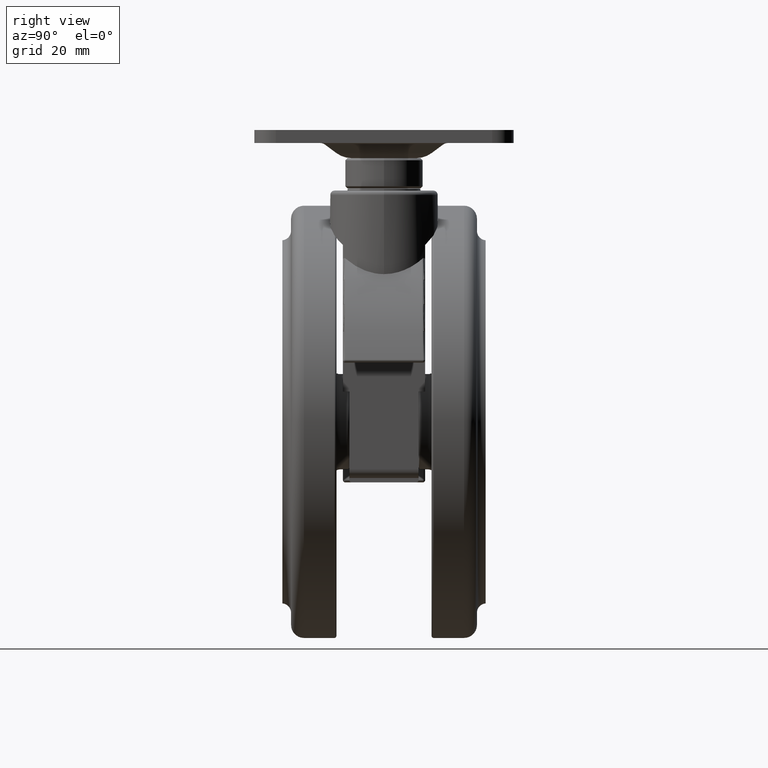
[diagram: clean part render]
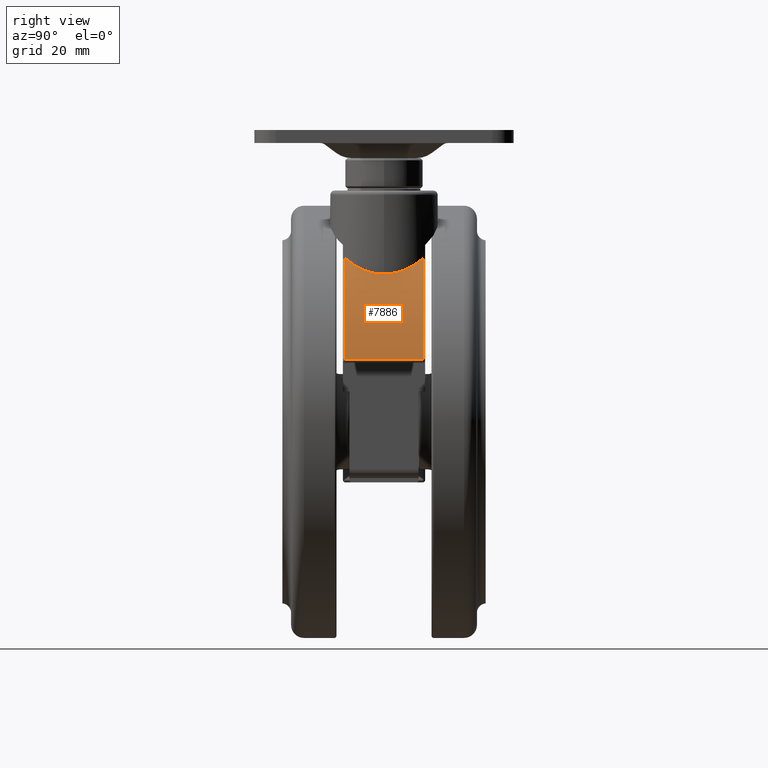
[diagram: same view with one face highlighted and labeled with its STEP entity id]
A machine part, right view. The second image highlights one B-rep face of the part: STEP entity #7886.
In plain terms, the highlighted cylindrical surface (partial cylindrical patch) has radius 50 mm, axis along (0, -1, 0).
Its self-contained STEP definition (entity closure, byte-faithful):
#32 = CARTESIAN_POINT ( 'NONE',  ( -24.00000000000000000, 990.5000000000000000, -53.50000000000000000 ) ) ;
#109 = ORIENTED_EDGE ( 'NONE', *, *, #4098, .F. ) ;
#154 = CARTESIAN_POINT ( 'NONE',  ( 12.37764164409242300, -1.801385357013293400, -19.19734373394497200 ) ) ;
#243 = CARTESIAN_POINT ( 'NONE',  ( 12.11877000567150600, 3.095162068476703600, -18.92467575144749100 ) ) ;
#283 = CARTESIAN_POINT ( 'NONE',  ( -24.00000000000000000, 9.000000000000000000, -53.50000000000000000 ) ) ;
#549 = LINE ( 'NONE', #6242, #7424 ) ;
#618 = CARTESIAN_POINT ( 'NONE',  ( 8.674675786448640100, 9.000000000000000000, -15.65339431005135000 ) ) ;
#662 = CARTESIAN_POINT ( 'NONE',  ( 8.674675786448640100, -9.000000000000000000, -15.65339431005135000 ) ) ;
#703 = DIRECTION ( 'NONE',  ( 0.0000000000000000000, 0.0000000000000000000, -1.000000000000000000 ) ) ;
#804 = CARTESIAN_POINT ( 'NONE',  ( 10.41356608720767900, -6.925548331915378800, -17.22597816632628600 ) ) ;
#839 = CARTESIAN_POINT ( 'NONE',  ( 12.50000000000000200, -0.4570195409798453200, -19.32764275031654600 ) ) ;
#913 = CIRCLE ( 'NONE', #1003, 50.00000000000000000 ) ;
#926 = CARTESIAN_POINT ( 'NONE',  ( 11.73015233206106700, 4.340429558232132800, -18.52294936965489200 ) ) ;
#972 = DIRECTION ( 'NONE',  ( 1.804112415015879400E-015, 0.0000000000000000000, 1.000000000000000000 ) ) ;
#982 = CIRCLE ( 'NONE', #2866, 50.00000000000000000 ) ;
#1003 = AXIS2_PLACEMENT_3D ( 'NONE', #6701, #6869, #6633 ) ;
#1084 = EDGE_CURVE ( 'NONE', #5420, #2726, #913, .T. ) ;
#1491 = CARTESIAN_POINT ( 'NONE',  ( 11.03877907241482200, -5.879024560946014300, -17.82977506181467900 ) ) ;
#1573 = ORIENTED_EDGE ( 'NONE', *, *, #5675, .F. ) ;
#1609 = CARTESIAN_POINT ( 'NONE',  ( 11.23411156296764400, 5.497210306263435900, -18.02302103889086000 ) ) ;
#1790 = CYLINDRICAL_SURFACE ( 'NONE', #4773, 50.00000000000000700 ) ;
#2159 = CARTESIAN_POINT ( 'NONE',  ( 11.57181168495634800, -4.745331184770802400, -18.36162725998665800 ) ) ;
#2235 = CARTESIAN_POINT ( 'NONE',  ( 12.49999999999991700, 3.393769718286666300E-042, -19.32764275031635700 ) ) ;
#2261 = DIRECTION ( 'NONE',  ( -0.0000000000000000000, 1.000000000000000000, -0.0000000000000000000 ) ) ;
#2263 = CARTESIAN_POINT ( 'NONE',  ( 10.63760660978023000, 6.577196889096090800, -17.44008869464494200 ) ) ;
#2726 = VERTEX_POINT ( 'NONE', #8518 ) ;
#2819 = CARTESIAN_POINT ( 'NONE',  ( 11.92972378157572200, -3.738713559440001600, -18.72839615757576200 ) ) ;
#2866 = AXIS2_PLACEMENT_3D ( 'NONE', #283, #4960, #972 ) ;
#2942 = CARTESIAN_POINT ( 'NONE',  ( 9.732990473647905800, 7.883236944809032900, -16.58821432272462500 ) ) ;
#2962 = CARTESIAN_POINT ( 'NONE',  ( 23.89849570952705100, 9.000000000000000000, -39.15656565656575300 ) ) ;
#3438 = VERTEX_POINT ( 'NONE', #618 ) ;
#3500 = CARTESIAN_POINT ( 'NONE',  ( 12.10947342914417600, -3.107862272914747600, -18.91513334638029100 ) ) ;
#3615 = CARTESIAN_POINT ( 'NONE',  ( 8.674675786448640100, 9.000000000000000000, -15.65339431005135000 ) ) ;
#3639 = ORIENTED_EDGE ( 'NONE', *, *, #1084, .T. ) ;
#3669 = B_SPLINE_CURVE_WITH_KNOTS ( 'NONE', 3,
 ( #2235, #6206, #4247, #243, #4923, #926, #5581, #1609, #6243, #2263, #6920, #2942, #7587, #3615 ),
 .UNSPECIFIED., .F., .F.,
 ( 4, 2, 2, 2, 2, 2, 4 ),
 ( 3.804236636272513900E-017, 0.002694944737254267500, 0.004042417105881382200, 0.005389889474508496900, 0.006737361843135610700, 0.008084834211762726200, 0.01077977894901695000 ),
 .UNSPECIFIED. ) ;
#3670 = EDGE_CURVE ( 'NONE', #5001, #3438, #982, .T. ) ;
#3963 = VERTEX_POINT ( 'NONE', #5335 ) ;
#4027 = DIRECTION ( 'NONE',  ( 0.0000000000000000000, -1.000000000000000000, 0.0000000000000000000 ) ) ;
#4098 = EDGE_CURVE ( 'NONE', #5420, #3963, #4832, .T. ) ;
#4157 = CARTESIAN_POINT ( 'NONE',  ( 12.30549156215436200, -2.241011549354734000, -19.12078713125714200 ) ) ;
#4179 = EDGE_CURVE ( 'NONE', #2726, #5001, #549, .T. ) ;
#4237 = ORIENTED_EDGE ( 'NONE', *, *, #3670, .T. ) ;
#4247 = CARTESIAN_POINT ( 'NONE',  ( 12.40084018158641400, 1.802115843324062900, -19.22095088052819600 ) ) ;
#4773 = AXIS2_PLACEMENT_3D ( 'NONE', #32, #4027, #703 ) ;
#4803 = CARTESIAN_POINT ( 'NONE',  ( 9.727541181349737400, -7.889693021056102900, -16.58325949959632300 ) ) ;
#4832 = B_SPLINE_CURVE_WITH_KNOTS ( 'NONE', 3,
 ( #6093, #6781, #4803, #804, #5468, #1491, #6122, #2159, #6808, #2819, #7464, #3500, #8137, #4157, #154, #4833, #839, #5489 ),
 .UNSPECIFIED., .F., .F.,
 ( 4, 2, 2, 2, 2, 2, 2, 2, 4 ),
 ( 0.07395446126120951100, 0.07664576319914051500, 0.07799141416810601000, 0.07933706513707151900, 0.08068271610603701400, 0.08135554159051977500, 0.08202836707500252300, 0.08337401804396801800, 0.08471966901293352700 ),
 .UNSPECIFIED. ) ;
#4833 = CARTESIAN_POINT ( 'NONE',  ( 12.47489013491492200, -0.9100098877678261000, -19.30076860309551300 ) ) ;
#4923 = CARTESIAN_POINT ( 'NONE',  ( 12.00128187329013900, 3.522078346824553100, -18.80208133115295200 ) ) ;
#4960 = DIRECTION ( 'NONE',  ( -0.0000000000000000000, -1.000000000000000000, -0.0000000000000000000 ) ) ;
#5001 = VERTEX_POINT ( 'NONE', #2962 ) ;
#5335 = CARTESIAN_POINT ( 'NONE',  ( 12.49999999999991700, 3.393769718286666300E-042, -19.32764275031635700 ) ) ;
#5410 = EDGE_LOOP ( 'NONE', ( #5615, #4237, #1573, #109, #3639 ) ) ;
#5420 = VERTEX_POINT ( 'NONE', #662 ) ;
#5468 = CARTESIAN_POINT ( 'NONE',  ( 10.63048024701826900, -6.588661693814932700, -17.43324489384843900 ) ) ;
#5489 = CARTESIAN_POINT ( 'NONE',  ( 12.49999999999991700, 3.393769718286666300E-042, -19.32764275031635700 ) ) ;
#5581 = CARTESIAN_POINT ( 'NONE',  ( 11.57613070658707600, 4.734741980774037600, -18.36600538244387000 ) ) ;
#5615 = ORIENTED_EDGE ( 'NONE', *, *, #4179, .T. ) ;
#5675 = EDGE_CURVE ( 'NONE', #3963, #3438, #3669, .T. ) ;
#6093 = CARTESIAN_POINT ( 'NONE',  ( 8.674675786448640100, -9.000000000000000000, -15.65339431005135000 ) ) ;
#6122 = CARTESIAN_POINT ( 'NONE',  ( 11.22866344950349700, -5.508367350044362200, -18.01760581742367500 ) ) ;
#6206 = CARTESIAN_POINT ( 'NONE',  ( 12.50000000000000500, 0.9152762753426525500, -19.32764275031655600 ) ) ;
#6242 = CARTESIAN_POINT ( 'NONE',  ( 23.89849570952705100, 990.5000000000000000, -39.15656565656575300 ) ) ;
#6243 = CARTESIAN_POINT ( 'NONE',  ( 11.04584957175876300, 5.865782176355681400, -17.83672164820485100 ) ) ;
#6633 = DIRECTION ( 'NONE',  ( 0.0000000000000000000, 0.0000000000000000000, 1.000000000000000000 ) ) ;
#6701 = CARTESIAN_POINT ( 'NONE',  ( -24.00000000000000000, -9.000000000000000000, -53.50000000000000000 ) ) ;
#6781 = CARTESIAN_POINT ( 'NONE',  ( 9.223508459809304200, -8.471006055287372000, -16.12722622538808500 ) ) ;
#6808 = CARTESIAN_POINT ( 'NONE',  ( 11.72613140591742600, -4.351206337109113400, -18.51884115775466100 ) ) ;
#6869 = DIRECTION ( 'NONE',  ( 0.0000000000000000000, 1.000000000000000000, 0.0000000000000000000 ) ) ;
#6920 = CARTESIAN_POINT ( 'NONE',  ( 10.42047639678593500, 6.915222609291524800, -17.23252908371766500 ) ) ;
#7308 = FACE_OUTER_BOUND ( 'NONE', #5410, .T. ) ;
#7424 = VECTOR ( 'NONE', #2261, 1000.000000000000000 ) ;
#7464 = CARTESIAN_POINT ( 'NONE',  ( 11.99292620921685800, -3.530987904090738400, -18.79385737831707500 ) ) ;
#7587 = CARTESIAN_POINT ( 'NONE',  ( 9.226911639271678600, 8.467725891011907500, -16.13016434318092600 ) ) ;
#7886 = ADVANCED_FACE ( 'NONE', ( #7308 ), #1790, .T. ) ;
#8137 = CARTESIAN_POINT ( 'NONE',  ( 12.16293198939507800, -2.891781329733745100, -18.97106867145486600 ) ) ;
#8518 = CARTESIAN_POINT ( 'NONE',  ( 23.89849570952705100, -9.000000000000000000, -39.15656565656575300 ) ) ;